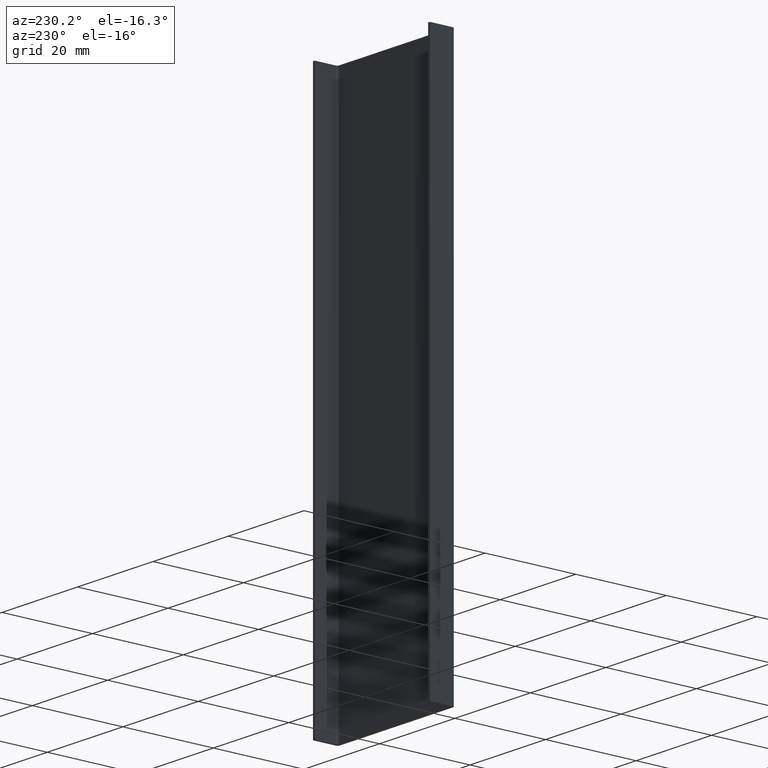
[diagram: clean part render]
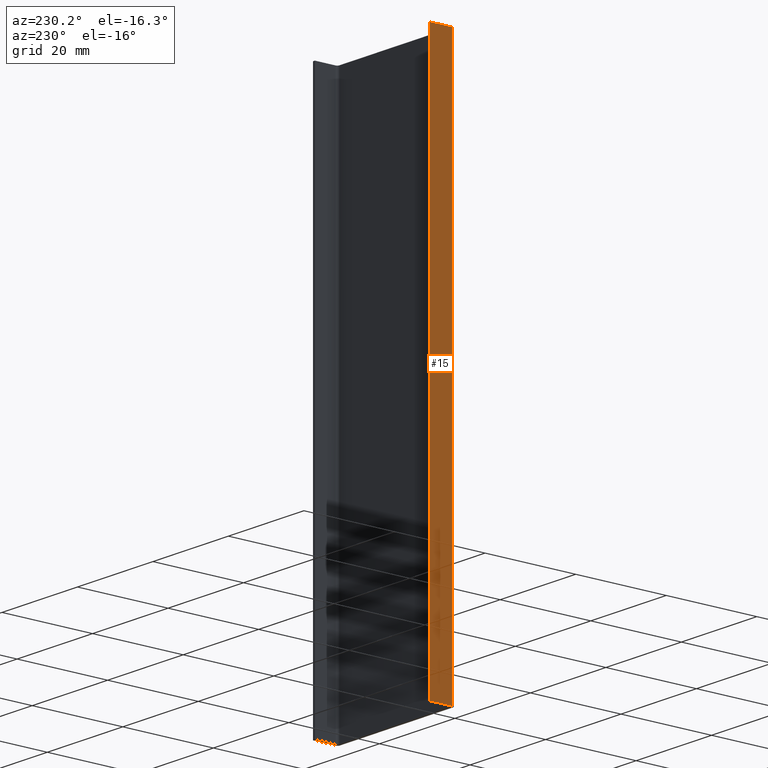
[diagram: same view with one face highlighted and labeled with its STEP entity id]
A machine part, auxiliary view. The second image highlights one B-rep face of the part: STEP entity #15.
In plain terms, the highlighted planar face has unit normal (1, 0, -0).
Its self-contained STEP definition (entity closure, byte-faithful):
#3 = EDGE_CURVE ( 'NONE', #262, #278, #244, .T. ) ;
#4 = EDGE_CURVE ( 'NONE', #260, #238, #245, .T. ) ;
#15 = ADVANCED_FACE ( 'NONE', ( #297 ), #328, .F. ) ;
#22 = EDGE_CURVE ( 'NONE', #260, #262, #363, .T. ) ;
#42 = EDGE_CURVE ( 'NONE', #238, #278, #441, .T. ) ;
#80 = VECTOR ( 'NONE', #310, 1000.000000000000000 ) ;
#82 = VECTOR ( 'NONE', #308, 1000.000000000000000 ) ;
#98 = AXIS2_PLACEMENT_3D ( 'NONE', #303, #335, #298 ) ;
#104 = VECTOR ( 'NONE', #424, 1000.000000000000000 ) ;
#119 = VECTOR ( 'NONE', #384, 1000.000000000000000 ) ;
#170 = EDGE_LOOP ( 'NONE', ( #279, #233, #206, #225 ) ) ;
#206 = ORIENTED_EDGE ( 'NONE', *, *, #4, .F. ) ;
#225 = ORIENTED_EDGE ( 'NONE', *, *, #22, .T. ) ;
#233 = ORIENTED_EDGE ( 'NONE', *, *, #42, .F. ) ;
#238 = VERTEX_POINT ( 'NONE', #479 ) ;
#244 = LINE ( 'NONE', #292, #80 ) ;
#245 = LINE ( 'NONE', #296, #82 ) ;
#260 = VERTEX_POINT ( 'NONE', #498 ) ;
#262 = VERTEX_POINT ( 'NONE', #507 ) ;
#278 = VERTEX_POINT ( 'NONE', #539 ) ;
#279 = ORIENTED_EDGE ( 'NONE', *, *, #3, .T. ) ;
#292 = CARTESIAN_POINT ( 'NONE',  ( -0.4999576447826075100, 5.922377799591049400, 0.0000000000000000000 ) ) ;
#296 = CARTESIAN_POINT ( 'NONE',  ( -0.4999576447826075100, 5.922377799591049400, 120.0000000000000000 ) ) ;
#297 = FACE_OUTER_BOUND ( 'NONE', #170, .T. ) ;
#298 = DIRECTION ( 'NONE',  ( -0.0000000000000000000, 0.0000000000000000000, -1.000000000000000000 ) ) ;
#303 = CARTESIAN_POINT ( 'NONE',  ( -0.4999576447826075100, 5.922377799591049400, 120.0000000000000000 ) ) ;
#308 = DIRECTION ( 'NONE',  ( 0.0000000000000000000, -1.000000000000000000, 0.0000000000000000000 ) ) ;
#310 = DIRECTION ( 'NONE',  ( 0.0000000000000000000, -1.000000000000000000, 0.0000000000000000000 ) ) ;
#328 = PLANE ( 'NONE',  #98 ) ;
#335 = DIRECTION ( 'NONE',  ( 1.000000000000000000, 0.0000000000000000000, -0.0000000000000000000 ) ) ;
#363 = LINE ( 'NONE', #381, #119 ) ;
#381 = CARTESIAN_POINT ( 'NONE',  ( -0.4999576447826075100, 5.922377799591049400, 120.0000000000000000 ) ) ;
#384 = DIRECTION ( 'NONE',  ( -0.0000000000000000000, -0.0000000000000000000, -1.000000000000000000 ) ) ;
#422 = CARTESIAN_POINT ( 'NONE',  ( -0.4999576447826075100, 0.9124201709886099500, 120.0000000000000000 ) ) ;
#424 = DIRECTION ( 'NONE',  ( -0.0000000000000000000, -0.0000000000000000000, -1.000000000000000000 ) ) ;
#441 = LINE ( 'NONE', #422, #104 ) ;
#479 = CARTESIAN_POINT ( 'NONE',  ( -0.4999576447826075100, 0.9124201709886099500, 120.0000000000000000 ) ) ;
#498 = CARTESIAN_POINT ( 'NONE',  ( -0.4999576447826075100, 5.922377799591049400, 120.0000000000000000 ) ) ;
#507 = CARTESIAN_POINT ( 'NONE',  ( -0.4999576447826075100, 5.922377799591049400, 0.0000000000000000000 ) ) ;
#539 = CARTESIAN_POINT ( 'NONE',  ( -0.4999576447826075100, 0.9124201709886099500, 0.0000000000000000000 ) ) ;